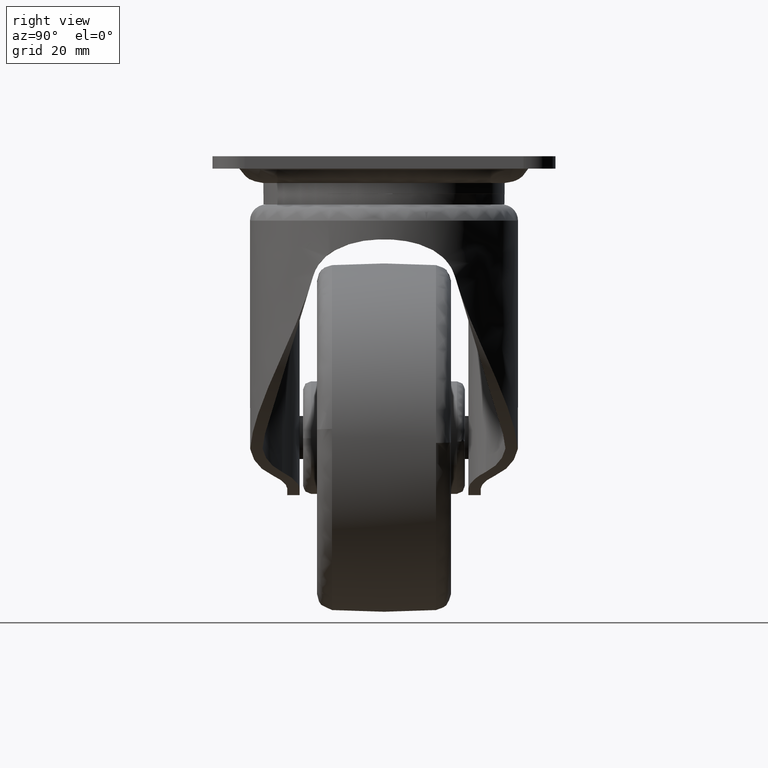
[diagram: clean part render]
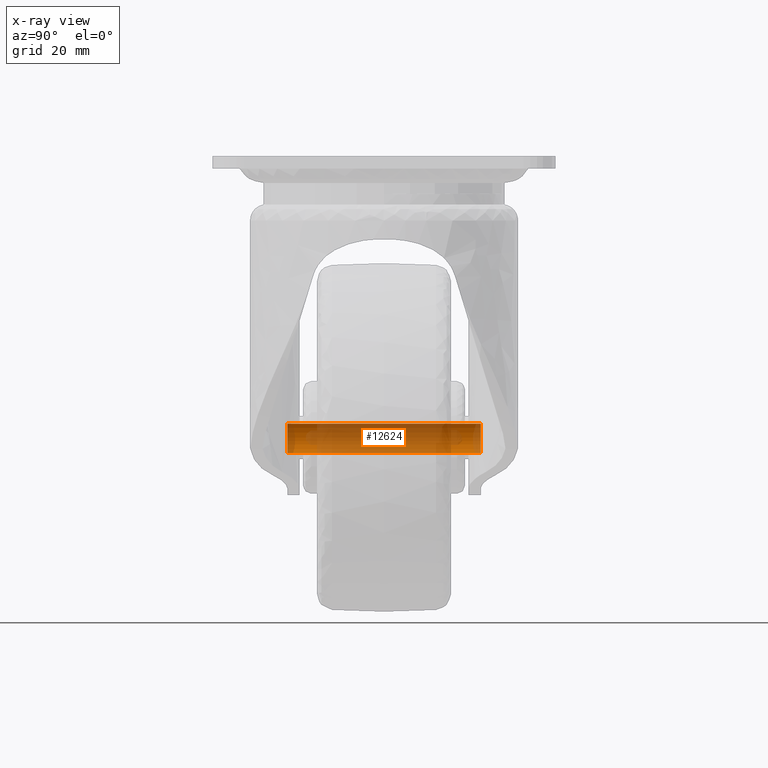
[diagram: x-ray — body ghosted, one internal face saturated and labeled with its STEP entity id]
A machine part, right view, then the same camera in x-ray: the body is ghosted and one INTERNAL B-rep face — a face not visible from any outside direction — is saturated and labeled: STEP entity #12624.
In plain terms, the highlighted face is a freeform B-spline surface patch.
Its self-contained STEP definition (entity closure, byte-faithful):
#12444=CARTESIAN_POINT('',(-24.054222832094919,18.050000000000029,-49.917031612754869));
#12445=VERTEX_POINT('',#12444);
#12457=CARTESIAN_POINT('',(-24.054222832202431,-18.050000000000001,-49.917031612881992));
#12458=VERTEX_POINT('',#12457);
#12459=CARTESIAN_POINT('',(-24.054222832202431,-18.050000000000001,-49.917031612881992));
#12460=CARTESIAN_POINT('',(-24.054222832094919,18.050000000000029,-49.917031612754869));
#12461=QUASI_UNIFORM_CURVE('',1,(#12459,#12460),.UNSPECIFIED.,.F.,.U.);
#12462=EDGE_CURVE('',#12458,#12445,#12461,.T.);
#12505=CARTESIAN_POINT('',(-23.753418008463289,-18.050000000000001,-55.401497275129060));
#12506=VERTEX_POINT('',#12505);
#12516=CARTESIAN_POINT('',(-23.753418007856641,18.049999999999748,-55.401497275704749));
#12517=VERTEX_POINT('',#12516);
#12518=CARTESIAN_POINT('',(-23.753418008463289,-18.050000000000001,-55.401497275129060));
#12519=CARTESIAN_POINT('',(-23.753418007856641,18.049999999999748,-55.401497275704749));
#12520=QUASI_UNIFORM_CURVE('',1,(#12518,#12519),.UNSPECIFIED.,.F.,.U.);
#12521=EDGE_CURVE('',#12506,#12517,#12520,.T.);
#12565=CARTESIAN_POINT('',(-23.753418302774961,-18.952500000000001,-55.401497484049088));
#12566=CARTESIAN_POINT('',(-26.493457432700168,-18.952499999999997,-52.801297438337791));
#12567=CARTESIAN_POINT('',(-24.054222571761798,-18.952500000000001,-49.917031846471950));
#12568=CARTESIAN_POINT('',(-23.753418302774961,18.975062500000000,-55.401497484049088));
#12569=CARTESIAN_POINT('',(-26.493457432700168,18.975062499999996,-52.801297438337791));
#12570=CARTESIAN_POINT('',(-24.054222571761798,18.975062500000000,-49.917031846471950));
#12578=(BOUNDED_SURFACE()B_SPLINE_SURFACE(2,1,((#12565,#12568),(#12566,#12569),(#12567,#12570)),.UNSPECIFIED.,.F.,.F.,.U.)B_SPLINE_SURFACE_WITH_KNOTS((3,3),(2,2),(0.0,6.360574234835030),(0.0,37.927562500000001),.UNSPECIFIED.)GEOMETRIC_REPRESENTATION_ITEM()RATIONAL_B_SPLINE_SURFACE(((1.0,1.0),(0.718822509939086,0.718822509939086),(0.977505800795127,0.977505800795127)))REPRESENTATION_ITEM('')SURFACE());
#12579=CARTESIAN_POINT('',(-24.999999999999670,18.050000000000001,-52.499998581512031));
#12580=VERTEX_POINT('',#12579);
#12581=CARTESIAN_POINT('',(-24.999999999999670,18.050000000000001,-52.499998581512031));
#12582=CARTESIAN_POINT('',(-25.000416213123490,18.050000000000040,-52.017333035939359));
#12583=CARTESIAN_POINT('',(-24.828378928177209,18.049999999999930,-51.081651932088803));
#12584=CARTESIAN_POINT('',(-24.347232095306069,18.050000000000072,-50.263054730614222));
#12585=CARTESIAN_POINT('',(-24.054222832094919,18.050000000000029,-49.917031612754869));
#12586=B_SPLINE_CURVE_WITH_KNOTS('',3,(#12581,#12582,#12583,#12584,#12585),.UNSPECIFIED.,.F.,.U.,(4,1,4),(0.000000023155298,1.447853280601444,2.807991606334000),.UNSPECIFIED.);
#12587=EDGE_CURVE('',#12580,#12445,#12586,.T.);
#12588=ORIENTED_EDGE('',*,*,#12587,.F.);
#12589=CARTESIAN_POINT('',(-23.753418007856641,18.049999999999748,-55.401497275704749));
#12590=CARTESIAN_POINT('',(-23.937398593011171,18.049999999999770,-55.226933350794248));
#12591=CARTESIAN_POINT('',(-24.316655073207240,18.049999999999791,-54.791446507889198));
#12592=CARTESIAN_POINT('',(-24.701052920419752,18.049999999999908,-54.089353049973923));
#12593=CARTESIAN_POINT('',(-24.945071384039618,18.049999999999851,-53.294652198264622));
#12594=CARTESIAN_POINT('',(-25.000050716353279,18.050000000000029,-52.787436408224039));
#12595=CARTESIAN_POINT('',(-24.999999999999670,18.050000000000001,-52.499998581512031));
#12596=B_SPLINE_CURVE_WITH_KNOTS('',3,(#12589,#12590,#12591,#12592,#12593,#12594,#12595),.UNSPECIFIED.,.F.,.U.,(4,1,1,1,4),(0.000000033078432,0.760858830816964,1.724602117733607,2.384026566147493,3.246335503738724),.UNSPECIFIED.);
#12597=EDGE_CURVE('',#12517,#12580,#12596,.T.);
#12598=ORIENTED_EDGE('',*,*,#12597,.F.);
#12599=ORIENTED_EDGE('',*,*,#12521,.F.);
#12600=CARTESIAN_POINT('',(-24.999999999999670,-18.050000000000001,-52.499998581512031));
#12601=VERTEX_POINT('',#12600);
#12602=CARTESIAN_POINT('',(-23.753418008463289,-18.050000000000001,-55.401497275129060));
#12603=CARTESIAN_POINT('',(-24.023366984626911,-18.050000000000018,-55.145547540045960));
#12604=CARTESIAN_POINT('',(-24.373916179452891,-18.050000000000001,-54.704529257224330));
#12605=CARTESIAN_POINT('',(-24.744761814920111,-18.050000000000011,-53.961404723947552));
#12606=CARTESIAN_POINT('',(-24.949993064343040,-18.050000000000001,-53.277762418095882));
#12607=CARTESIAN_POINT('',(-25.000027178137099,-18.050000000000001,-52.753617693832467));
#12608=CARTESIAN_POINT('',(-24.999999999999670,-18.050000000000001,-52.499998581512031));
#12609=B_SPLINE_CURVE_WITH_KNOTS('',3,(#12602,#12603,#12604,#12605,#12606,#12607,#12608),.UNSPECIFIED.,.F.,.U.,(4,1,1,1,4),(0.000000033081666,1.115933692408834,1.673873460134200,2.485476705331080,3.246335502902382),.UNSPECIFIED.);
#12610=EDGE_CURVE('',#12506,#12601,#12609,.T.);
#12611=ORIENTED_EDGE('',*,*,#12610,.T.);
#12612=CARTESIAN_POINT('',(-24.999999999999670,-18.050000000000001,-52.499998581512031));
#12613=CARTESIAN_POINT('',(-25.000009260803399,-18.050000000000011,-52.280626378853263));
#12614=CARTESIAN_POINT('',(-24.959011091590259,-18.050000000000018,-51.783383231809289));
#12615=CARTESIAN_POINT('',(-24.709229616156520,-18.049999999999979,-50.876038009099432));
#12616=CARTESIAN_POINT('',(-24.337771251109789,-18.050000000000029,-50.251893413177662));
#12617=CARTESIAN_POINT('',(-24.054222832202431,-18.050000000000001,-49.917031612881992));
#12618=B_SPLINE_CURVE_WITH_KNOTS('',3,(#12612,#12613,#12614,#12615,#12616,#12617),.UNSPECIFIED.,.F.,.U.,(4,1,1,4),(0.000000023147835,0.658122829559870,1.491741623792764,2.807991606167509),.UNSPECIFIED.);
#12619=EDGE_CURVE('',#12601,#12458,#12618,.T.);
#12620=ORIENTED_EDGE('',*,*,#12619,.T.);
#12621=ORIENTED_EDGE('',*,*,#12462,.T.);
#12622=EDGE_LOOP('',(#12588,#12598,#12599,#12611,#12620,#12621));
#12623=FACE_OUTER_BOUND('',#12622,.T.);
#12624=ADVANCED_FACE('',(#12623),#12578,.T.);